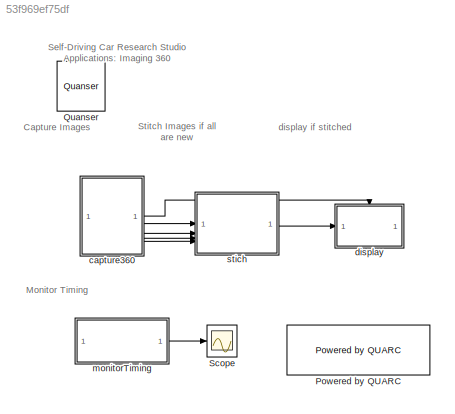
MODEL slx_53f969ef75df
KIND model
CONFIG AbsTol = auto
CONFIG EnableMultiTasking = on
CONFIG FixedStep = 1/30
CONFIG MaxStep = auto
CONFIG MinStep = auto
CONFIG RelTol = 1e-3
CONFIG SampleTimeConstraint = Unconstrained
CONFIG SolverName = ode2
CONFIG StartTime = 0.0
CONFIG StopTime = inf
BLOCK [Reference] Powered by QUARC  REF=quarc_library/Logos/Powered by QUARC
  SourceBlock = quarc_library/Logos/Powered by QUARC
  SourceProductName = QUARC Targets
  SourceType = Powered by QUARC
BLOCK [Reference] Quanser  REF=quarc_library/Logos/Quanser
  SourceBlock = quarc_library/Logos/Quanser
  SourceProductName = QUARC Targets
  SourceType = Powered by Quanser
BLOCK [Scope] Scope
  Floating = off
  NumInputPorts = 1
  ScopeSpecificationString = Simulink.scopes.TimeScopeBlockCfg('CurrentConfiguration', extmgr.ConfigurationSet(extmgr.Configuration('Core','General UI',true),extmgr.Configuration('Core','Source UI',true),extmgr.Configuration('Sources','WiredSimulink',true),extmgr.Configuration('Visuals','Time Domain',true,'SerializedDisplays',{struct('MinYLimReal','-0.0068','MaxYLimReal','0.06689','YLabelReal','','MinYLimMag','0.00000','MaxYL...<+1442ch>
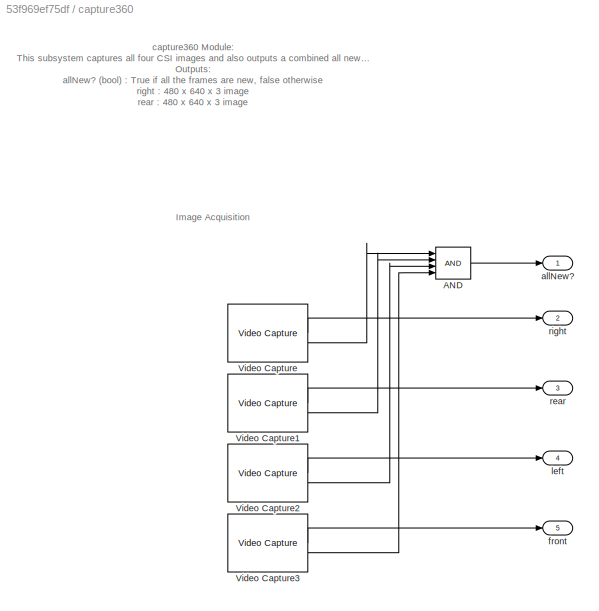
BLOCK [SubSystem] capture360
BLOCK [Logic] capture360/AND
  AllPortsSameDT = off
  IconShape = distinctive
  Inputs = 4
  OutDataTypeStr = boolean
BLOCK [Reference] capture360/Video Capture  REF=quarc_library/Multimedia/Video Capture
  SourceBlock = quarc_library/Multimedia/Video Capture
  SourceProductName = QUARC Targets
  SourceType = Video Capture
BLOCK [Reference] capture360/Video Capture1  REF=quarc_library/Multimedia/Video Capture
  SourceBlock = quarc_library/Multimedia/Video Capture
  SourceProductName = QUARC Targets
  SourceType = Video Capture
BLOCK [Reference] capture360/Video Capture2  REF=quarc_library/Multimedia/Video Capture
  SourceBlock = quarc_library/Multimedia/Video Capture
  SourceProductName = QUARC Targets
  SourceType = Video Capture
BLOCK [Reference] capture360/Video Capture3  REF=quarc_library/Multimedia/Video Capture
  SourceBlock = quarc_library/Multimedia/Video Capture
  SourceProductName = QUARC Targets
  SourceType = Video Capture
BLOCK [Outport] capture360/allNew?
  VectorParamsAs1DForOutWhenUnconnected = off
BLOCK [Outport] capture360/front
  Port = 5
  VectorParamsAs1DForOutWhenUnconnected = off
BLOCK [Outport] capture360/left
  Port = 4
  VectorParamsAs1DForOutWhenUnconnected = off
BLOCK [Outport] capture360/rear
  Port = 3
  VectorParamsAs1DForOutWhenUnconnected = off
BLOCK [Outport] capture360/right
  Port = 2
  VectorParamsAs1DForOutWhenUnconnected = off
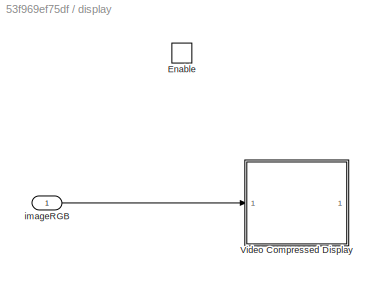
BLOCK [SubSystem] display
BLOCK [EnablePort] display/Enable
  PropagateVarSize = During execution
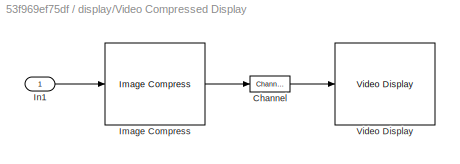
BLOCK [SubSystem] display/Video Compressed Display
  CopyFcn = set_param(gcbh, 'UserData', gcb);\nset_param(gcbh, 'LinkStatus', 'none');
  LoadFcn = set_param(gcbh, 'UserData', gcb);
  NameChangeFcn = video_display_show([get_param(gcbh, 'UserData'), '/Video Display'], 'rename', [gcb, '/Video Display']);\nvideo_display_show([gcb, '/Video Display'], 'add', gcb);\nset_param(gcbh, 'UserData', gcb);
  OpenFcn = video_display_show([gcb, '/Video Display'], 'show', gcb);
  PreDeleteFcn = video_display_show([gcb, '/Video Display'], 'delete');
  StartFcn = video_display_show([gcb, '/Video Display'], 'add', gcb);
  UndoDeleteFcn = set_param(gcbh, 'UserData', gcb);
BLOCK [Reference] display/Video Compressed Display/Channel  REF=quarc_library/Signal Routing/Channel
  SourceBlock = quarc_library/Signal Routing/Channel
  SourceProductName = QUARC Targets
  SourceType = Channel
BLOCK [Reference] display/Video Compressed Display/Image Compress  REF=quarc_library/Image Processing/Generic/Image Compress
  AttributesFormatString = (%<algorithm>)
  SourceBlock = quarc_library/Image Processing/Generic/Image Compress
  SourceProductName = QUARC Targets
  SourceType = Image Compress
BLOCK [Inport] display/Video Compressed Display/In1
BLOCK [Reference] display/Video Compressed Display/Video Display  REF=quarc_library/Multimedia/Video Display
  SourceBlock = quarc_library/Multimedia/Video Display
  SourceProductName = QUARC Targets
  SourceType = Video Display
  Tag = QCar2_Imaging_360/display/Video Compressed\nDisplay/Video Display
  UserDataPersistent = on
BLOCK [Inport] display/imageRGB
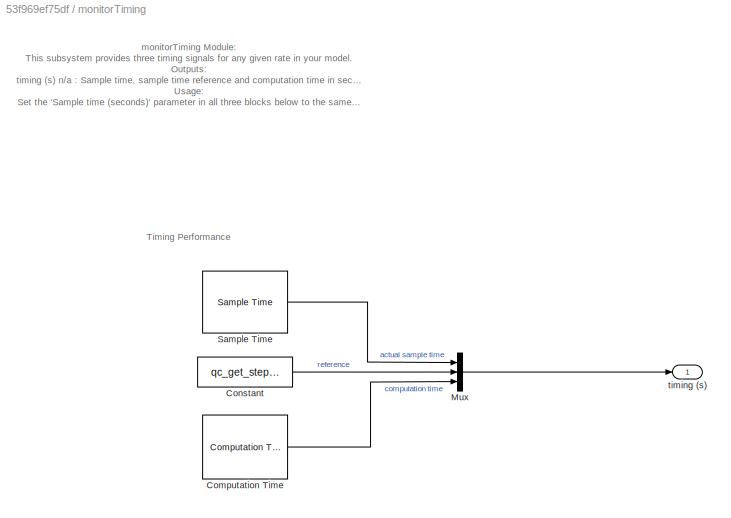
BLOCK [SubSystem] monitorTiming 
BLOCK [Reference] monitorTiming /Computation Time  REF=quarc_library/Sources/Time/Computation Time
  SourceBlock = quarc_library/Sources/Time/Computation Time
  SourceProductName = QUARC Targets
  SourceType = Computation Time
BLOCK [Constant] monitorTiming /Constant
  Value = qc_get_step_size
BLOCK [Mux] monitorTiming /Mux
  DisplayOption = bar
  Inputs = 3
BLOCK [Reference] monitorTiming /Sample Time  REF=quarc_library/Sources/Time/Sample Time
  Priority = -99
  SourceBlock = quarc_library/Sources/Time/Sample Time
  SourceProductName = QUARC Targets
  SourceType = Sample Time
BLOCK [Outport] monitorTiming /timing (s)
  VectorParamsAs1DForOutWhenUnconnected = off
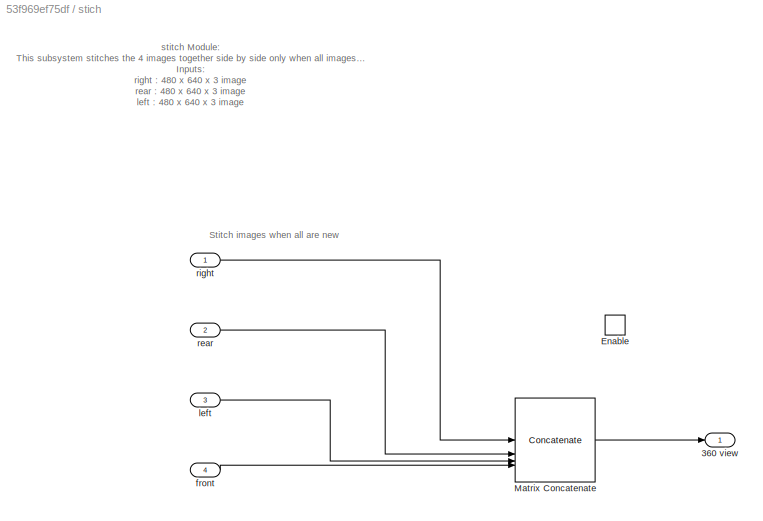
BLOCK [SubSystem] stich
BLOCK [Outport] stich/360 view
  VectorParamsAs1DForOutWhenUnconnected = off
BLOCK [EnablePort] stich/Enable
BLOCK [Concatenate] stich/Matrix Concatenate
  ConcatenateDimension = 2
  Mode = Multidimensional array
  NumInputs = 4
BLOCK [Inport] stich/front
  Port = 4
BLOCK [Inport] stich/left
  Port = 3
BLOCK [Inport] stich/rear
  Port = 2
BLOCK [Inport] stich/right
ANNOTATION (root): Self-Driving Car Research Studio Applications: Imaging 360
ANNOTATION (root): Capture Images
ANNOTATION (root): Monitor Timing
ANNOTATION (root): Stitch Images if all are new
ANNOTATION (root): display if stitched
ANNOTATION capture360: capture360 Module: This subsystem captures all four CSI images and also outputs a combined all new signal. Outputs: allNew? (bool) : True if all the frames are new, false otherwise right : 480 x 640 x 3 image rear : 480 x 640 x 3 image left : 480 x 640 x 3 image front : 480 x 640 x 3 image
ANNOTATION capture360: Image Acquisition
ANNOTATION monitorTiming : monitorTiming Module: This subsystem provides three timing signals for any given rate in your model. Outputs: timing (s) n/a : Sample time, sample time reference and computation time in seconds. Usage: Set the 'Sample time (seconds)' parameter in all three blocks below to the same number. This will provide the actual sample time at each time step, the reference sample time that is being targeted a...<+103ch>
ANNOTATION monitorTiming : Timing Performance
ANNOTATION stich: stitch Module: This subsystem stitches the 4 images together side by side only when all images are new. Inputs: right : 480 x 640 x 3 image rear : 480 x 640 x 3 image left : 480 x 640 x 3 image front : 480 x 640 x 3 image Outputs: 360 View (bool) : 480 x 2560 x 3 stitched image
ANNOTATION stich: Stitch images when all are new
LINE capture360/AND:1 -> capture360/allNew?:1
LINE capture360/Video Capture1:1 -> capture360/rear:1
LINE capture360/Video Capture1:2 -> capture360/AND:2
LINE capture360/Video Capture2:1 -> capture360/left:1
LINE capture360/Video Capture2:2 -> capture360/AND:3
LINE capture360/Video Capture3:1 -> capture360/front:1
LINE capture360/Video Capture3:2 -> capture360/AND:4
LINE capture360/Video Capture:1 -> capture360/right:1
LINE capture360/Video Capture:2 -> capture360/AND:1
NET capture360:1 -> display:enable, stich:enable
LINE capture360:2 -> stich:1
LINE capture360:3 -> stich:2
LINE capture360:4 -> stich:3
LINE capture360:5 -> stich:4
LINE display/imageRGB:1 -> display/Video Compressed Display:1
LINE monitorTiming /Computation Time:1 -> monitorTiming /Mux:3
LINE monitorTiming /Constant:1 -> monitorTiming /Mux:2
LINE monitorTiming /Mux:1 -> monitorTiming /timing (s):1
LINE monitorTiming /Sample Time:1 -> monitorTiming /Mux:1
LINE monitorTiming :1 -> Scope:1
LINE stich/Matrix Concatenate:1 -> stich/360 view:1
LINE stich/front:1 -> stich/Matrix Concatenate:4
LINE stich/left:1 -> stich/Matrix Concatenate:3
LINE stich/rear:1 -> stich/Matrix Concatenate:2
LINE stich/right:1 -> stich/Matrix Concatenate:1
LINE stich:1 -> display:1
note: NET lines group one-source signal fan-out (src -> all destinations, sorted); 1:1 wires keep LINE
